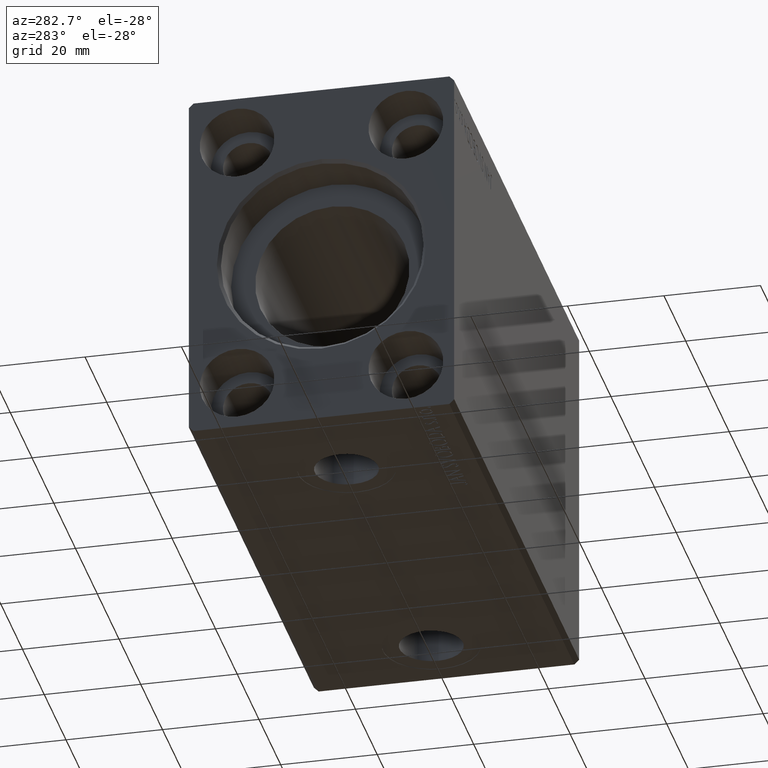
[diagram: clean part render]
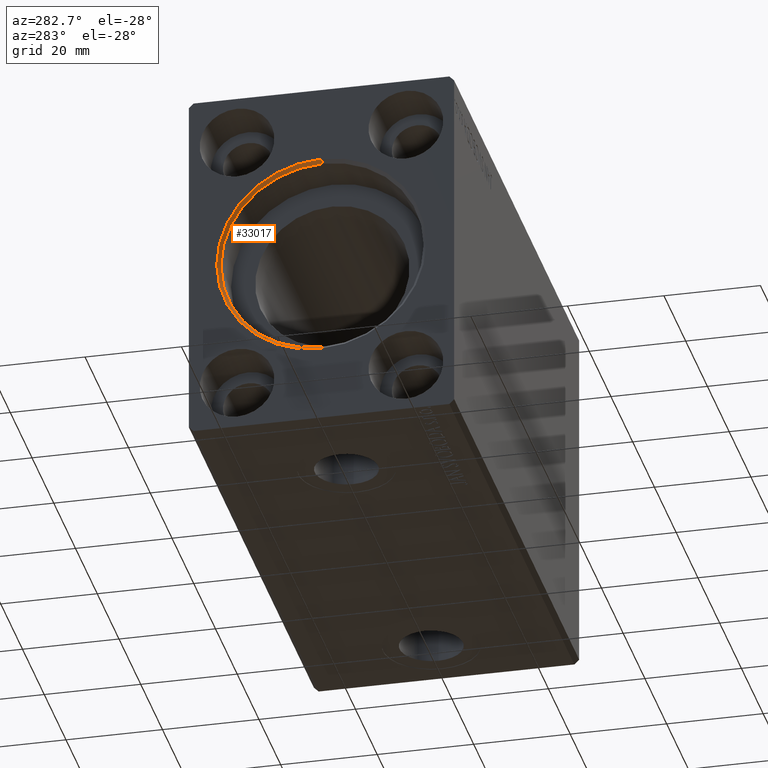
[diagram: same view with one face highlighted and labeled with its STEP entity id]
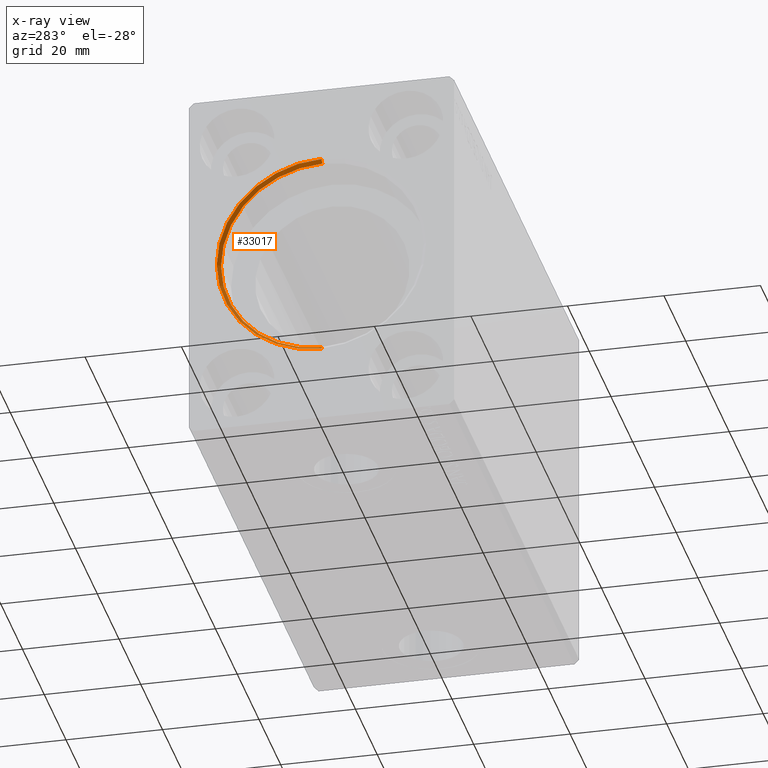
[diagram: x-ray of the same camera — body ghosted, the highlighted face saturated]
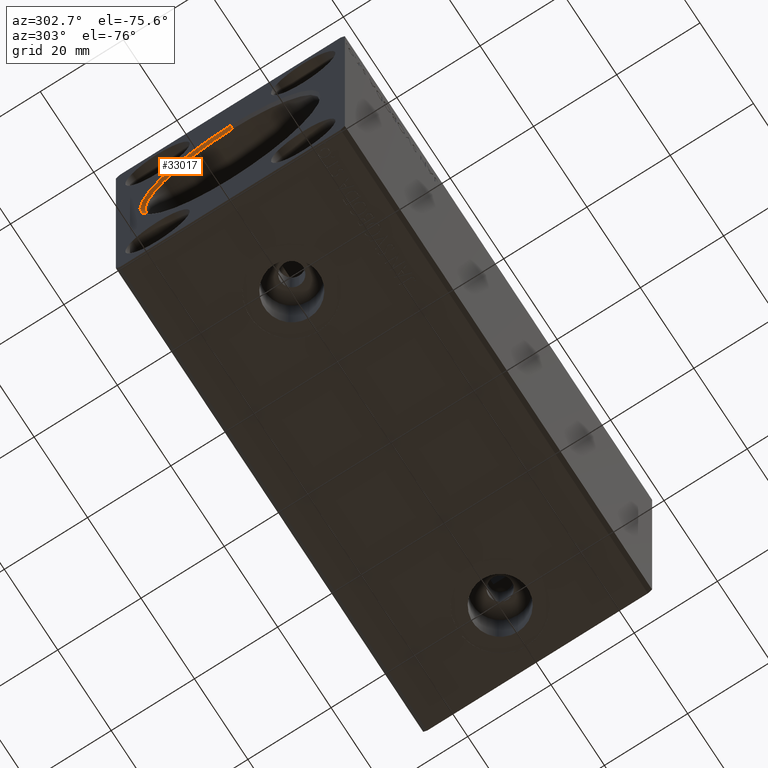
[diagram: same view with one face highlighted and labeled with its STEP entity id]
A machine part, auxiliary view. The second image highlights one B-rep face of the part: STEP entity #33017.
The next image is the same camera in x-ray: the body ghosted, the highlighted face saturated — about 0% of this face is hidden behind the body in this view.
A second angle (auxiliary view) of the same face is appended — the face is thin or edge-on in the first view.
In plain terms, the highlighted conical surface has half-angle 45 deg.
Its self-contained STEP definition (entity closure, byte-faithful):
#528 = VERTEX_POINT ( 'NONE', #29334 ) ;
#1651 = CARTESIAN_POINT ( 'NONE',  ( 0.7000000000000443645, 0.000000000000000000, 0.000000000000000000 ) ) ;
#1838 = EDGE_CURVE ( 'NONE', #3631, #528, #11782, .T. ) ;
#1858 = DIRECTION ( 'NONE',  ( 0.000000000000000000, 0.000000000000000000, 1.000000000000000000 ) ) ;
#1871 = ORIENTED_EDGE ( 'NONE', *, *, #1838, .T. ) ;
#3631 = VERTEX_POINT ( 'NONE', #25796 ) ;
#9703 = ORIENTED_EDGE ( 'NONE', *, *, #11546, .F. ) ;
#11546 = EDGE_CURVE ( 'NONE', #14191, #30979, #15485, .T. ) ;
#11782 = LINE ( 'NONE', #38100, #20424 ) ;
#13876 = CARTESIAN_POINT ( 'NONE',  ( 0.000000000000000000, 0.000000000000000000, 0.000000000000000000 ) ) ;
#14191 = VERTEX_POINT ( 'NONE', #26727 ) ;
#14521 = DIRECTION ( 'NONE',  ( 1.000000000000000000, 0.000000000000000000, 0.000000000000000000 ) ) ;
#14779 = FACE_OUTER_BOUND ( 'NONE', #39895, .T. ) ;
#15485 = LINE ( 'NONE', #32093, #37774 ) ;
#17625 = CONICAL_SURFACE ( 'NONE', #41026, 21.00000000000000000, 0.7853981633974432830 ) ;
#20424 = VECTOR ( 'NONE', #37259, 1000.000000000000000 ) ;
#22964 = CARTESIAN_POINT ( 'NONE',  ( 0.7000000000000443645, 0.000000000000000000, 0.000000000000000000 ) ) ;
#23431 = EDGE_CURVE ( 'NONE', #3631, #14191, #28361, .T. ) ;
#25796 = CARTESIAN_POINT ( 'NONE',  ( 0.7000000000000443645, 0.000000000000000000, 21.00000000000000000 ) ) ;
#26727 = CARTESIAN_POINT ( 'NONE',  ( 0.7000000000000443645, 2.571758278209441661E-15, -21.00000000000000000 ) ) ;
#28092 = ORIENTED_EDGE ( 'NONE', *, *, #23431, .F. ) ;
#28361 = CIRCLE ( 'NONE', #31811, 21.00000000000000000 ) ;
#29317 = CIRCLE ( 'NONE', #40343, 21.70000000000003837 ) ;
#29334 = CARTESIAN_POINT ( 'NONE',  ( 0.000000000000000000, 0.000000000000000000, 21.70000000000003837 ) ) ;
#29446 = DIRECTION ( 'NONE',  ( 0.000000000000000000, 0.000000000000000000, -1.000000000000000000 ) ) ;
#30085 = ORIENTED_EDGE ( 'NONE', *, *, #33368, .F. ) ;
#30979 = VERTEX_POINT ( 'NONE', #35522 ) ;
#31811 = AXIS2_PLACEMENT_3D ( 'NONE', #22964, #36545, #29446 ) ;
#32093 = CARTESIAN_POINT ( 'NONE',  ( 0.7000000000000443645, 2.571758278209441661E-15, -21.00000000000000000 ) ) ;
#33017 = ADVANCED_FACE ( 'NONE', ( #14779 ), #17625, .F. ) ;
#33368 = EDGE_CURVE ( 'NONE', #30979, #528, #29317, .T. ) ;
#35522 = CARTESIAN_POINT ( 'NONE',  ( 0.000000000000000000, 2.657483554149761471E-15, -21.70000000000003837 ) ) ;
#36545 = DIRECTION ( 'NONE',  ( -1.000000000000000000, 0.000000000000000000, 0.000000000000000000 ) ) ;
#37259 = DIRECTION ( 'NONE',  ( -0.7071067811865511255, 0.000000000000000000, 0.7071067811865440200 ) ) ;
#37774 = VECTOR ( 'NONE', #42223, 1000.000000000000000 ) ;
#38100 = CARTESIAN_POINT ( 'NONE',  ( 0.7000000000000443645, 0.000000000000000000, 21.00000000000000000 ) ) ;
#38702 = DIRECTION ( 'NONE',  ( -1.000000000000000000, 0.000000000000000000, 0.000000000000000000 ) ) ;
#39751 = DIRECTION ( 'NONE',  ( 0.000000000000000000, 0.000000000000000000, -1.000000000000000000 ) ) ;
#39895 = EDGE_LOOP ( 'NONE', ( #9703, #28092, #1871, #30085 ) ) ;
#40343 = AXIS2_PLACEMENT_3D ( 'NONE', #13876, #14521, #39751 ) ;
#41026 = AXIS2_PLACEMENT_3D ( 'NONE', #1651, #38702, #1858 ) ;
#42223 = DIRECTION ( 'NONE',  ( -0.7071067811865511255, 8.659560562354889717E-17, -0.7071067811865440200 ) ) ;